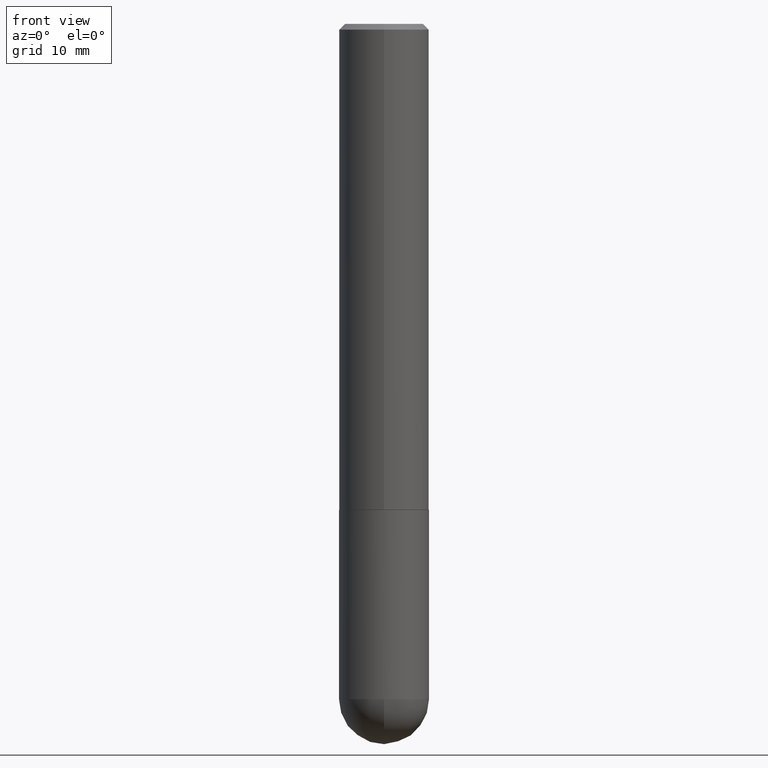
[diagram: clean part render]
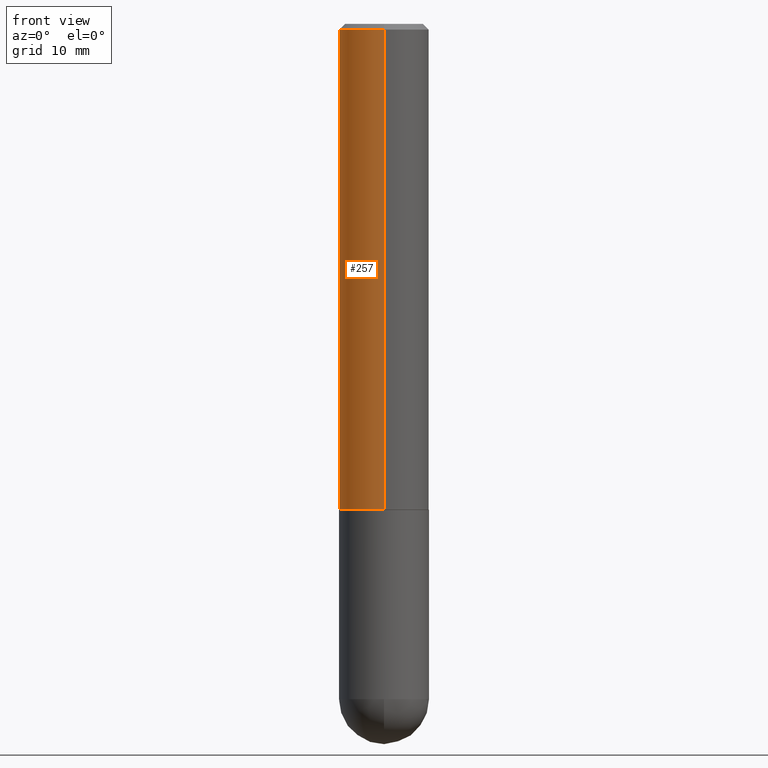
[diagram: same view with one face highlighted and labeled with its STEP entity id]
A machine part, front view. The second image highlights one B-rep face of the part: STEP entity #257.
In plain terms, the highlighted cylindrical surface (partial cylindrical patch) has radius 3.9688 mm, axis along (-0, 0, 1).
Its self-contained STEP definition (entity closure, byte-faithful):
#17 = CARTESIAN_POINT ( 'NONE',  ( -1.071952812151801215E-15, -0.1562500000000000833, -0.01999999999999948694 ) ) ;
#28 = EDGE_CURVE ( 'NONE', #200, #314, #173, .T. ) ;
#34 = ORIENTED_EDGE ( 'NONE', *, *, #151, .F. ) ;
#47 = CYLINDRICAL_SURFACE ( 'NONE', #269, 0.1562500000000001110 ) ;
#58 = CARTESIAN_POINT ( 'NONE',  ( 1.110223024625178431E-15, 0.1562499999999943379, -1.686000000000000831 ) ) ;
#60 = CARTESIAN_POINT ( 'NONE',  ( 1.091087918388479568E-15, 0.1562499999999999445, -0.02000000000000057981 ) ) ;
#65 = DIRECTION ( 'NONE',  ( -6.982962677686265922E-15, -1.000000000000000000, 3.496765431890251792E-15 ) ) ;
#69 = EDGE_CURVE ( 'NONE', #349, #344, #226, .T. ) ;
#78 = CARTESIAN_POINT ( 'NONE',  ( -1.091087918388439336E-15, -0.1562500000000060785, -1.685999999999999721 ) ) ;
#81 = FACE_OUTER_BOUND ( 'NONE', #383, .T. ) ;
#83 = DIRECTION ( 'NONE',  ( -2.446339956007467928E-29, 3.490233802714798564E-15, 1.000000000000000000 ) ) ;
#119 = ORIENTED_EDGE ( 'NONE', *, *, #69, .F. ) ;
#142 = DIRECTION ( 'NONE',  ( -2.446339956007467928E-29, 3.490233802714798564E-15, 1.000000000000000000 ) ) ;
#151 = EDGE_CURVE ( 'NONE', #344, #314, #367, .T. ) ;
#161 = AXIS2_PLACEMENT_3D ( 'NONE', #172, #142, #270 ) ;
#162 = AXIS2_PLACEMENT_3D ( 'NONE', #405, #216, #65 ) ;
#172 = CARTESIAN_POINT ( 'NONE',  ( 4.892679912014943914E-31, -6.980467605429607481E-17, -0.02000000000000003511 ) ) ;
#173 = LINE ( 'NONE', #329, #246 ) ;
#178 = CARTESIAN_POINT ( 'NONE',  ( 0.000000000000000000, 0.000000000000000000, 0.000000000000000000 ) ) ;
#180 = DIRECTION ( 'NONE',  ( -6.982962677686265922E-15, -1.000000000000000000, 3.490233802714798958E-15 ) ) ;
#200 = VERTEX_POINT ( 'NONE', #78 ) ;
#206 = DIRECTION ( 'NONE',  ( -2.446339956007467648E-29, 3.490233802714798958E-15, 1.000000000000000000 ) ) ;
#216 = DIRECTION ( 'NONE',  ( -2.446339956007467928E-29, 3.490233802714798564E-15, 1.000000000000000000 ) ) ;
#226 = LINE ( 'NONE', #321, #407 ) ;
#238 = CIRCLE ( 'NONE', #162, 0.1562500000000002220 ) ;
#246 = VECTOR ( 'NONE', #295, 39.37007874015748143 ) ;
#253 = ORIENTED_EDGE ( 'NONE', *, *, #384, .T. ) ;
#257 = ADVANCED_FACE ( 'NONE', ( #81 ), #47, .T. ) ;
#269 = AXIS2_PLACEMENT_3D ( 'NONE', #178, #83, #180 ) ;
#270 = DIRECTION ( 'NONE',  ( -6.982962677686265133E-15, -1.000000000000000000, 3.496765431890256920E-15 ) ) ;
#295 = DIRECTION ( 'NONE',  ( -2.446339956007467648E-29, 3.490233802714798958E-15, 1.000000000000000000 ) ) ;
#314 = VERTEX_POINT ( 'NONE', #17 ) ;
#321 = CARTESIAN_POINT ( 'NONE',  ( 1.110223024625157132E-15, 0.1562500000000001110, -5.453490316741877193E-16 ) ) ;
#329 = CARTESIAN_POINT ( 'NONE',  ( -1.091087918388479765E-15, -0.1562500000000001110, 5.453490316741877193E-16 ) ) ;
#344 = VERTEX_POINT ( 'NONE', #60 ) ;
#346 = ORIENTED_EDGE ( 'NONE', *, *, #28, .T. ) ;
#349 = VERTEX_POINT ( 'NONE', #58 ) ;
#367 = CIRCLE ( 'NONE', #161, 0.1562500000000000000 ) ;
#383 = EDGE_LOOP ( 'NONE', ( #119, #253, #346, #34 ) ) ;
#384 = EDGE_CURVE ( 'NONE', #349, #200, #238, .T. ) ;
#405 = CARTESIAN_POINT ( 'NONE',  ( 4.124529165828591356E-29, -5.884534191377150994E-15, -1.686000000000000165 ) ) ;
#407 = VECTOR ( 'NONE', #206, 39.37007874015748143 ) ;